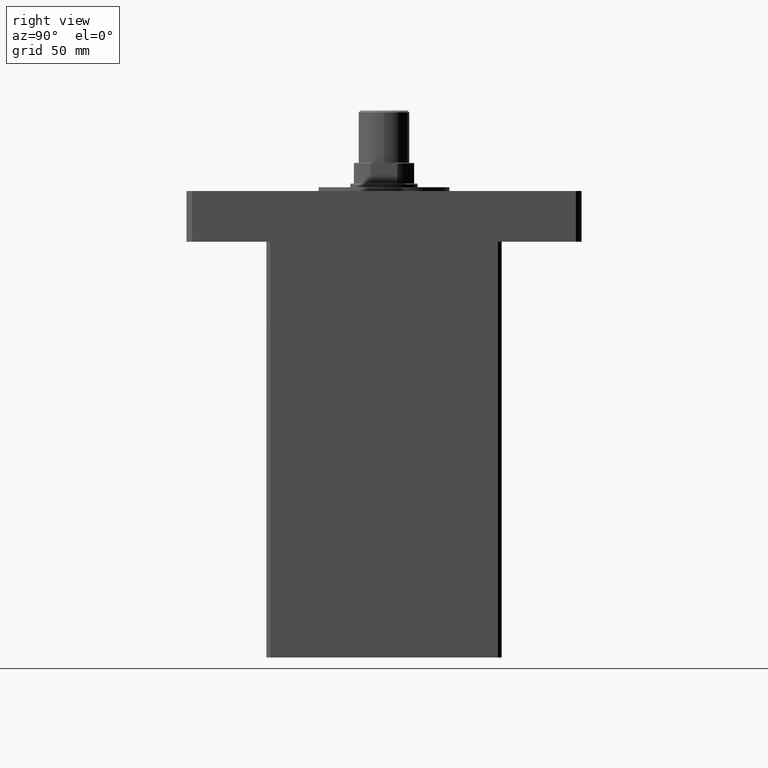
[diagram: clean part render]
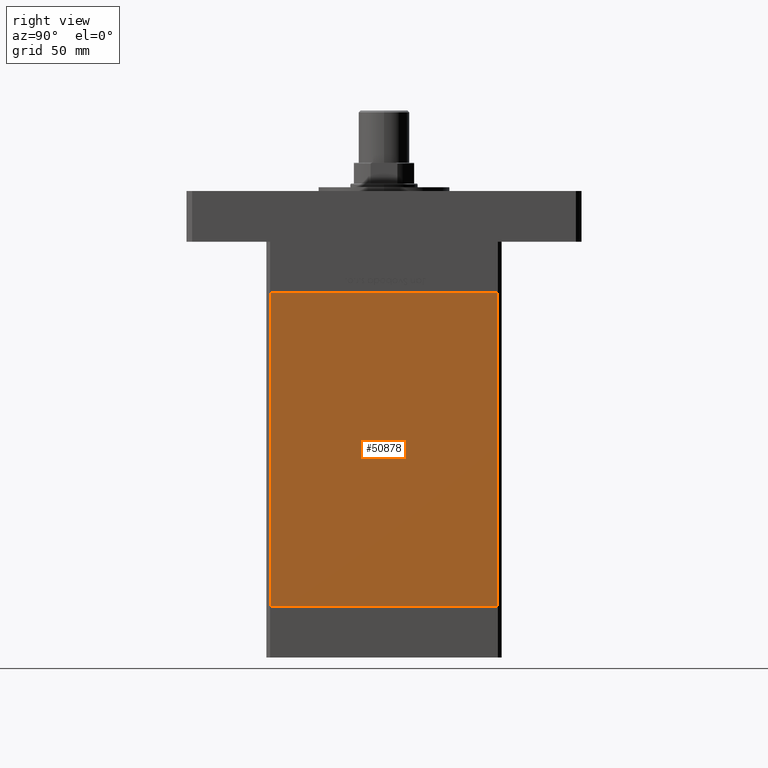
[diagram: same view with one face highlighted and labeled with its STEP entity id]
A machine part, right view. The second image highlights one B-rep face of the part: STEP entity #50878.
In plain terms, the highlighted planar face has unit normal (1, -0, 0).
Its self-contained STEP definition (entity closure, byte-faithful):
#1700 = LINE ( 'NONE', #23264, #43338 ) ;
#2341 = CARTESIAN_POINT ( 'NONE',  ( 75.00000000000001421, 60.50000000000000000, 0.000000000000000000 ) ) ;
#3953 = EDGE_LOOP ( 'NONE', ( #43999, #11289, #15695, #23031 ) ) ;
#5418 = PLANE ( 'NONE',  #22288 ) ;
#9827 = FACE_OUTER_BOUND ( 'NONE', #3953, .T. ) ;
#10467 = LINE ( 'NONE', #23210, #38870 ) ;
#11289 = ORIENTED_EDGE ( 'NONE', *, *, #31569, .F. ) ;
#14234 = DIRECTION ( 'NONE',  ( -2.293849224432141861E-16, -1.000000000000000000, 0.000000000000000000 ) ) ;
#15695 = ORIENTED_EDGE ( 'NONE', *, *, #44627, .T. ) ;
#15806 = EDGE_CURVE ( 'NONE', #39592, #39165, #40793, .T. ) ;
#17350 = DIRECTION ( 'NONE',  ( 1.000000000000000000, -2.293849224432142354E-16, 0.000000000000000000 ) ) ;
#19460 = CARTESIAN_POINT ( 'NONE',  ( 74.99999999999998579, -60.50000000000000000, 167.0000000000000000 ) ) ;
#20551 = EDGE_CURVE ( 'NONE', #43054, #39165, #23358, .T. ) ;
#21319 = CARTESIAN_POINT ( 'NONE',  ( 75.00000000000001421, 60.50000000000000000, 0.000000000000000000 ) ) ;
#22288 = AXIS2_PLACEMENT_3D ( 'NONE', #30085, #17350, #48047 ) ;
#23031 = ORIENTED_EDGE ( 'NONE', *, *, #15806, .T. ) ;
#23210 = CARTESIAN_POINT ( 'NONE',  ( 75.00000000000001421, 60.50000000000000000, 167.0000000000000000 ) ) ;
#23264 = CARTESIAN_POINT ( 'NONE',  ( 75.00000000000001421, 60.50000000000000000, 167.0000000000000000 ) ) ;
#23358 = LINE ( 'NONE', #2341, #25346 ) ;
#25346 = VECTOR ( 'NONE', #14234, 1000.000000000000000 ) ;
#30085 = CARTESIAN_POINT ( 'NONE',  ( 75.00000000000001421, 60.50000000000000000, 167.0000000000000000 ) ) ;
#31569 = EDGE_CURVE ( 'NONE', #50598, #43054, #10467, .T. ) ;
#34840 = CARTESIAN_POINT ( 'NONE',  ( 75.00000000000001421, 60.50000000000000000, 167.0000000000000000 ) ) ;
#34945 = VECTOR ( 'NONE', #41338, 1000.000000000000000 ) ;
#38870 = VECTOR ( 'NONE', #40130, 1000.000000000000000 ) ;
#39165 = VERTEX_POINT ( 'NONE', #48364 ) ;
#39592 = VERTEX_POINT ( 'NONE', #51019 ) ;
#40130 = DIRECTION ( 'NONE',  ( -0.000000000000000000, -0.000000000000000000, -1.000000000000000000 ) ) ;
#40793 = LINE ( 'NONE', #19460, #34945 ) ;
#41338 = DIRECTION ( 'NONE',  ( -0.000000000000000000, -0.000000000000000000, -1.000000000000000000 ) ) ;
#43054 = VERTEX_POINT ( 'NONE', #21319 ) ;
#43338 = VECTOR ( 'NONE', #44593, 1000.000000000000000 ) ;
#43999 = ORIENTED_EDGE ( 'NONE', *, *, #20551, .F. ) ;
#44593 = DIRECTION ( 'NONE',  ( -2.293849224432141861E-16, -1.000000000000000000, 0.000000000000000000 ) ) ;
#44627 = EDGE_CURVE ( 'NONE', #50598, #39592, #1700, .T. ) ;
#48047 = DIRECTION ( 'NONE',  ( 2.293849224432142354E-16, 1.000000000000000000, 0.000000000000000000 ) ) ;
#48364 = CARTESIAN_POINT ( 'NONE',  ( 74.99999999999998579, -60.50000000000000000, 0.000000000000000000 ) ) ;
#50598 = VERTEX_POINT ( 'NONE', #34840 ) ;
#50878 = ADVANCED_FACE ( 'NONE', ( #9827 ), #5418, .T. ) ;
#51019 = CARTESIAN_POINT ( 'NONE',  ( 74.99999999999998579, -60.50000000000000000, 167.0000000000000000 ) ) ;